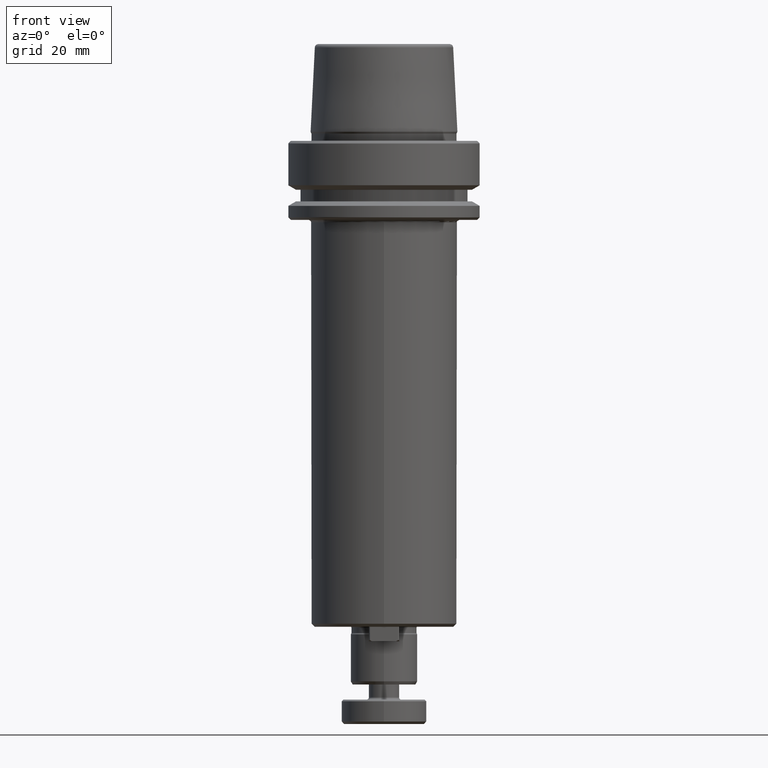
[diagram: clean part render]
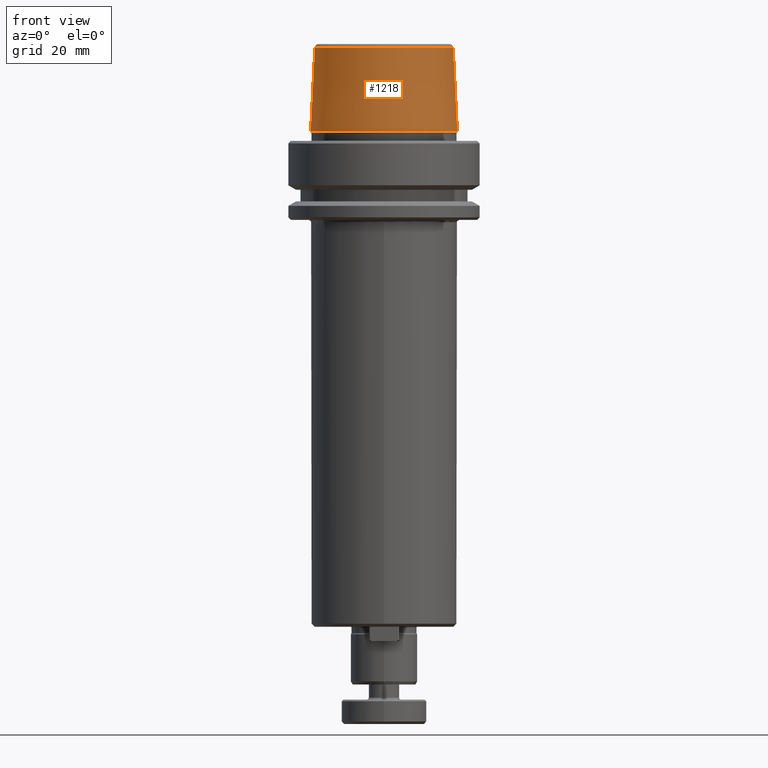
[diagram: same view with one face highlighted and labeled with its STEP entity id]
A machine part, front view. The second image highlights one B-rep face of the part: STEP entity #1218.
In plain terms, the highlighted conical surface has half-angle 2.868 deg.
Its self-contained STEP definition (entity closure, byte-faithful):
#57 = DIRECTION ( 'NONE',  ( -0.0000000000000000000, -0.0000000000000000000, 1.000000000000000000 ) ) ;
#78 = EDGE_CURVE ( 'NONE', #1137, #2475, #2012, .T. ) ;
#173 = AXIS2_PLACEMENT_3D ( 'NONE', #1905, #1017, #1267 ) ;
#194 = CARTESIAN_POINT ( 'NONE',  ( 0.0000000000000000000, 0.0000000000000000000, 3.000000000000002700 ) ) ;
#223 = CARTESIAN_POINT ( 'NONE',  ( 24.17032625081241900, 0.0000000000000000000, 3.000000000000002700 ) ) ;
#279 = DIRECTION ( 'NONE',  ( -0.05003611051310812000, 0.0000000000000000000, -0.9987474093306675200 ) ) ;
#324 = EDGE_LOOP ( 'NONE', ( #403, #2327, #413, #898 ) ) ;
#325 = CARTESIAN_POINT ( 'NONE',  ( 24.17032625081241900, 2.960011267740467600E-015, 3.000000000000002700 ) ) ;
#342 = LINE ( 'NONE', #325, #829 ) ;
#403 = ORIENTED_EDGE ( 'NONE', *, *, #1504, .F. ) ;
#413 = ORIENTED_EDGE ( 'NONE', *, *, #78, .T. ) ;
#416 = VECTOR ( 'NONE', #279, 1000.000000000000200 ) ;
#603 = CARTESIAN_POINT ( 'NONE',  ( 22.77957961851797100, 2.874852597157249900E-015, 30.76004333261571900 ) ) ;
#643 = EDGE_CURVE ( 'NONE', #2475, #2682, #1751, .T. ) ;
#652 = VERTEX_POINT ( 'NONE', #603 ) ;
#747 = CARTESIAN_POINT ( 'NONE',  ( -24.17032625081241900, 0.0000000000000000000, 3.000000000000002700 ) ) ;
#805 = DIRECTION ( 'NONE',  ( 1.000000000000000000, 0.0000000000000000000, 0.0000000000000000000 ) ) ;
#829 = VECTOR ( 'NONE', #1839, 1000.000000000000200 ) ;
#841 = CARTESIAN_POINT ( 'NONE',  ( -22.77957961851797100, 0.0000000000000000000, 30.76004333261571900 ) ) ;
#852 = EDGE_CURVE ( 'NONE', #1137, #652, #1092, .T. ) ;
#898 = ORIENTED_EDGE ( 'NONE', *, *, #643, .T. ) ;
#1017 = DIRECTION ( 'NONE',  ( 0.0000000000000000000, 0.0000000000000000000, -1.000000000000000000 ) ) ;
#1092 = CIRCLE ( 'NONE', #2461, 22.77957961851797100 ) ;
#1137 = VERTEX_POINT ( 'NONE', #841 ) ;
#1218 = ADVANCED_FACE ( 'NONE', ( #1430 ), #1362, .T. ) ;
#1267 = DIRECTION ( 'NONE',  ( -1.000000000000000000, 0.0000000000000000000, 0.0000000000000000000 ) ) ;
#1280 = DIRECTION ( 'NONE',  ( -0.0000000000000000000, -0.0000000000000000000, 1.000000000000000000 ) ) ;
#1355 = DIRECTION ( 'NONE',  ( 1.000000000000000000, 0.0000000000000000000, 0.0000000000000000000 ) ) ;
#1362 = CONICAL_SURFACE ( 'NONE', #173, 24.17032625081241900, 0.05005701257456005000 ) ;
#1430 = FACE_OUTER_BOUND ( 'NONE', #324, .T. ) ;
#1504 = EDGE_CURVE ( 'NONE', #652, #2682, #342, .T. ) ;
#1748 = CARTESIAN_POINT ( 'NONE',  ( 0.0000000000000000000, 0.0000000000000000000, 30.76004333261571900 ) ) ;
#1751 = CIRCLE ( 'NONE', #2516, 24.17032625081241900 ) ;
#1839 = DIRECTION ( 'NONE',  ( 0.05003611051310812000, 6.127656258166108900E-018, -0.9987474093306675200 ) ) ;
#1849 = CARTESIAN_POINT ( 'NONE',  ( -24.17032625081241900, 2.960011267740467600E-015, 3.000000000000002700 ) ) ;
#1905 = CARTESIAN_POINT ( 'NONE',  ( 0.0000000000000000000, 0.0000000000000000000, 3.000000000000002700 ) ) ;
#2012 = LINE ( 'NONE', #747, #416 ) ;
#2327 = ORIENTED_EDGE ( 'NONE', *, *, #852, .F. ) ;
#2461 = AXIS2_PLACEMENT_3D ( 'NONE', #1748, #57, #1355 ) ;
#2475 = VERTEX_POINT ( 'NONE', #1849 ) ;
#2516 = AXIS2_PLACEMENT_3D ( 'NONE', #194, #1280, #805 ) ;
#2682 = VERTEX_POINT ( 'NONE', #223 ) ;